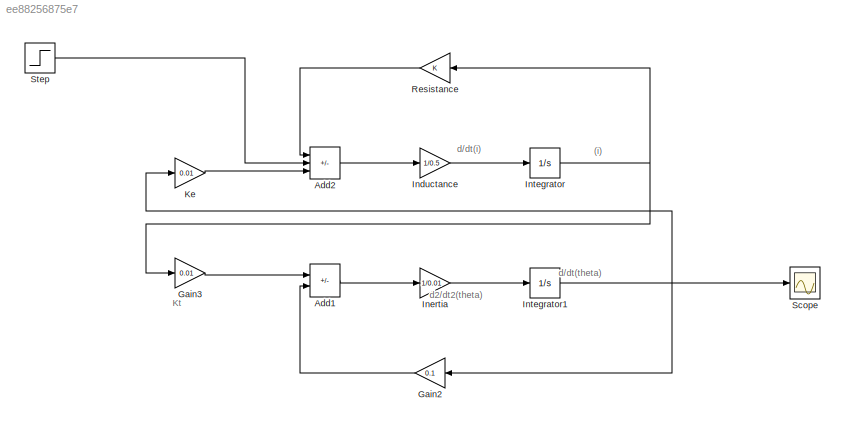
MODEL slx_ee88256875e7
KIND model
CONFIG AbsTol = auto
CONFIG EnableMultiTasking = off
CONFIG FixedStep = auto
CONFIG MaxStep = auto
CONFIG MinStep = auto
CONFIG RelTol = 1e-3
CONFIG SampleTimeConstraint = Unconstrained
CONFIG Solver = VariableStepAuto
CONFIG SolverName = VariableStepAuto
CONFIG StartTime = 0.0
CONFIG StopTime = 10.0
BLOCK [Sum] Add1
  IconShape = rectangular
  Inputs = +-
  Ports = [2, 1]
BLOCK [Sum] Add2
  IconShape = rectangular
  Inputs = -+-
  Ports = [3, 1]
BLOCK [Gain] Gain2
  Gain = 0.1
  NameLocation = top
BLOCK [Gain] Gain3
  Gain = 0.01
BLOCK [Gain] Inductance
  Gain = 1/0.5
BLOCK [Gain] Inertia
  Gain = 1/0.01
BLOCK [Integrator] Integrator
  Ports = [1, 1]
BLOCK [Integrator] Integrator1
  Ports = [1, 1]
BLOCK [Gain] Ke
  Gain = 0.01
BLOCK [Gain] Resistance
  NameLocation = top
BLOCK [Scope] Scope
  Floating = off
  NumInputPorts = 1
  Ports = [1]
  ScopeSpecificationString = Simulink.scopes.TimeScopeBlockCfg('CurrentConfiguration', extmgr.ConfigurationSet(extmgr.Configuration('Core','General UI',true),extmgr.Configuration('Core','Source UI',true),extmgr.Configuration('Sources','WiredSimulink',true),extmgr.Configuration('Visuals','Time Domain',true,'SerializedDisplays',{struct('MinYLimReal','-0.01249','MaxYLimReal','0.11238','YLabelReal','','MinYLimMag','0.00000','MaxY...<+1331ch>
BLOCK [Step] Step
  SampleTime = 0
ANNOTATION (root): (i)
ANNOTATION (root): Kt
ANNOTATION (root): d/dt(i)
ANNOTATION (root): d/dt(theta)
ANNOTATION (root): d2/dt2(theta)
LINE Add1:1 -> Inertia:1
LINE Add2:1 -> Inductance:1
LINE Gain2:1 -> Add1:2
LINE Gain3:1 -> Add1:1
LINE Inductance:1 -> Integrator:1
LINE Inertia:1 -> Integrator1:1
NET Integrator1:1 -> Gain2:1, Ke:1, Scope:1
NET Integrator:1 -> Gain3:1, Resistance:1
LINE Ke:1 -> Add2:3
LINE Resistance:1 -> Add2:1
LINE Step:1 -> Add2:2
note: NET lines group one-source signal fan-out (src -> all destinations, sorted); 1:1 wires keep LINE
